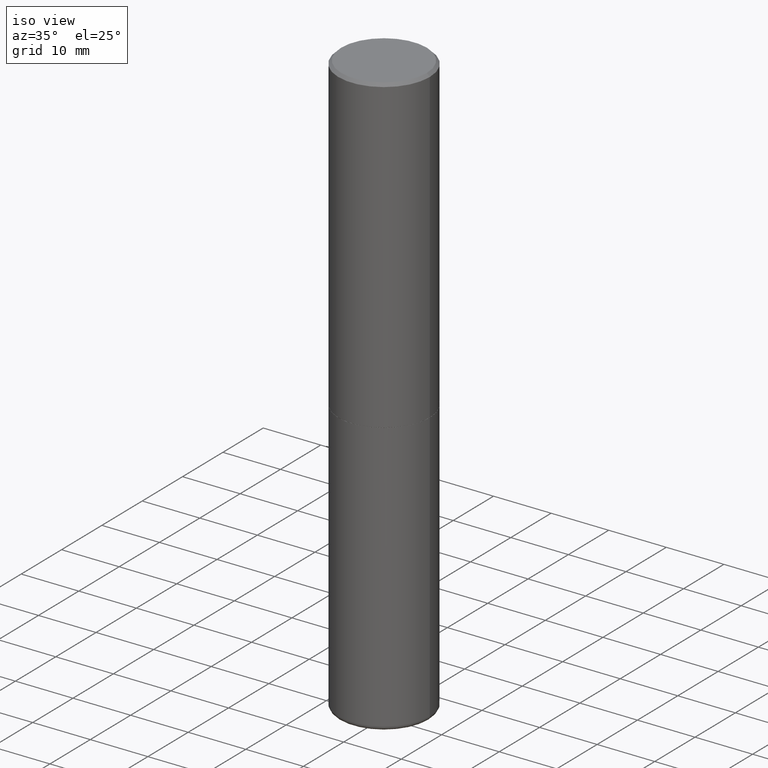
[diagram: clean part render]
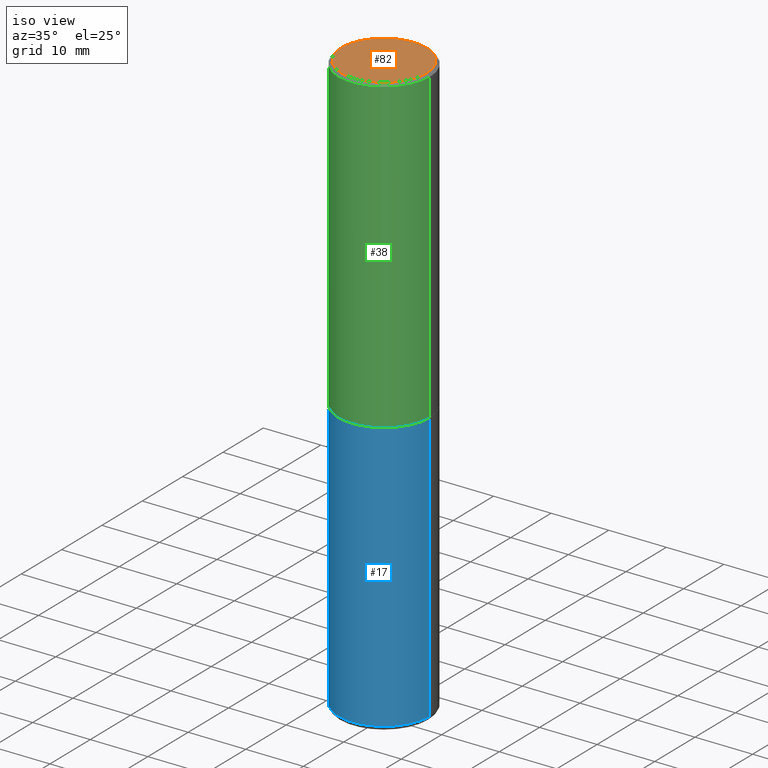
[diagram: same view with three faces highlighted in distinct colors, each labeled with its STEP entity id]
A machine part, iso view with three faces highlighted in distinct colors.
Their STEP definitions:

[orange] entity #82 — the highlighted planar face has unit normal (0, -0, -1).
#10 = EDGE_CURVE ( 'NONE', #112, #45, #99, .T. ) ;
#33 = CARTESIAN_POINT ( 'NONE',  ( 0.2925000000000002043, -2.110215457714321114E-15, -2.006200870347048687E-16 ) ) ;
#37 = FACE_OUTER_BOUND ( 'NONE', #92, .T. ) ;
#42 = CIRCLE ( 'NONE', #377, 0.2925000000000002043 ) ;
#45 = VERTEX_POINT ( 'NONE', #33 ) ;
#53 = DIRECTION ( 'NONE',  ( 1.000000000000000000, -6.982962677686266711E-15, 4.873475059489872853E-29 ) ) ;
#62 = PLANE ( 'NONE',  #162 ) ;
#82 = ADVANCED_FACE ( 'NONE', ( #37 ), #62, .F. ) ;
#92 = EDGE_LOOP ( 'NONE', ( #156, #292 ) ) ;
#99 = CIRCLE ( 'NONE', #283, 0.2925000000000002043 ) ;
#112 = VERTEX_POINT ( 'NONE', #232 ) ;
#133 = DIRECTION ( 'NONE',  ( -1.000000000000000000, 6.982962677686265922E-15, -4.876176775795935793E-29 ) ) ;
#141 = DIRECTION ( 'NONE',  ( -2.445468806185136597E-29, 3.491481338843145583E-15, 1.000000000000000000 ) ) ;
#156 = ORIENTED_EDGE ( 'NONE', *, *, #10, .T. ) ;
#162 = AXIS2_PLACEMENT_3D ( 'NONE', #334, #295, #133 ) ;
#204 = CARTESIAN_POINT ( 'NONE',  ( 4.906101647375534649E-45, -7.004612900788104277E-31, -2.006200870347193887E-16 ) ) ;
#232 = CARTESIAN_POINT ( 'NONE',  ( -0.2925000000000002043, 2.077431396611664583E-15, -2.006200870347337854E-16 ) ) ;
#250 = DIRECTION ( 'NONE',  ( -2.445468806185136597E-29, 3.491481338843145583E-15, 1.000000000000000000 ) ) ;
#273 = DIRECTION ( 'NONE',  ( 1.000000000000000000, -6.982962677686266711E-15, 4.873475059489872853E-29 ) ) ;
#283 = AXIS2_PLACEMENT_3D ( 'NONE', #384, #250, #53 ) ;
#292 = ORIENTED_EDGE ( 'NONE', *, *, #386, .T. ) ;
#295 = DIRECTION ( 'NONE',  ( 2.438088387897960049E-29, -3.491481338843145188E-15, -1.000000000000000000 ) ) ;
#334 = CARTESIAN_POINT ( 'NONE',  ( 2.042516583223234117E-15, 0.2925000000000002043, -1.121568335128980438E-15 ) ) ;
#377 = AXIS2_PLACEMENT_3D ( 'NONE', #204, #141, #273 ) ;
#384 = CARTESIAN_POINT ( 'NONE',  ( 4.906101647375534649E-45, -7.004612900788104277E-31, -2.006200870347193887E-16 ) ) ;
#386 = EDGE_CURVE ( 'NONE', #45, #112, #42, .T. ) ;

[blue] entity #17 — the highlighted cylindrical surface (partial cylindrical patch) has radius 7.9375 mm, axis along (-0, 0, 1).
#16 = CARTESIAN_POINT ( 'NONE',  ( 9.708511160554992872E-29, -1.386118091520728738E-14, -3.970000000000000195 ) ) ;
#17 = ADVANCED_FACE ( 'NONE', ( #221 ), #187, .T. ) ;
#25 = EDGE_CURVE ( 'NONE', #154, #322, #57, .T. ) ;
#28 = ORIENTED_EDGE ( 'NONE', *, *, #264, .F. ) ;
#40 = DIRECTION ( 'NONE',  ( -2.445468806185136597E-29, 3.491481338843145583E-15, 1.000000000000000000 ) ) ;
#57 = CIRCLE ( 'NONE', #269, 0.3125000000000000000 ) ;
#64 = VECTOR ( 'NONE', #198, 39.37007874015748143 ) ;
#68 = CARTESIAN_POINT ( 'NONE',  ( 0.000000000000000000, 0.000000000000000000, 0.000000000000000000 ) ) ;
#89 = VECTOR ( 'NONE', #262, 39.37007874015748143 ) ;
#93 = EDGE_CURVE ( 'NONE', #179, #322, #265, .T. ) ;
#98 = DIRECTION ( 'NONE',  ( 1.000000000000000000, -6.982962677686266711E-15, 4.876176775795936353E-29 ) ) ;
#104 = CARTESIAN_POINT ( 'NONE',  ( -0.3125000000000000000, -8.419843330874173211E-15, -2.125000000000000000 ) ) ;
#111 = CARTESIAN_POINT ( 'NONE',  ( -0.3124999999999999445, -1.164073486595697430E-14, -3.970000000000000195 ) ) ;
#120 = AXIS2_PLACEMENT_3D ( 'NONE', #16, #40, #147 ) ;
#127 = ORIENTED_EDGE ( 'NONE', *, *, #354, .T. ) ;
#147 = DIRECTION ( 'NONE',  ( 1.000000000000000000, -6.982962677686264344E-15, 0.000000000000000000 ) ) ;
#154 = VERTEX_POINT ( 'NONE', #104 ) ;
#159 = DIRECTION ( 'NONE',  ( -2.445468806185136597E-29, 3.491481338843145583E-15, 1.000000000000000000 ) ) ;
#166 = CARTESIAN_POINT ( 'NONE',  ( 0.3125000000000000000, -2.182175836776958347E-15, 1.523805242436230075E-29 ) ) ;
#179 = VERTEX_POINT ( 'NONE', #359 ) ;
#187 = CYLINDRICAL_SURFACE ( 'NONE', #291, 0.3125000000000000000 ) ;
#191 = DIRECTION ( 'NONE',  ( -2.445468806185136597E-29, 3.491481338843145583E-15, 1.000000000000000000 ) ) ;
#198 = DIRECTION ( 'NONE',  ( -2.445468806185136877E-29, 3.491481338843145188E-15, 1.000000000000000000 ) ) ;
#221 = FACE_OUTER_BOUND ( 'NONE', #347, .T. ) ;
#235 = CIRCLE ( 'NONE', #120, 0.3124999999999999445 ) ;
#237 = LINE ( 'NONE', #367, #64 ) ;
#260 = ORIENTED_EDGE ( 'NONE', *, *, #25, .F. ) ;
#262 = DIRECTION ( 'NONE',  ( -2.445468806185136877E-29, 3.491481338843145188E-15, 1.000000000000000000 ) ) ;
#264 = EDGE_CURVE ( 'NONE', #370, #154, #237, .T. ) ;
#265 = LINE ( 'NONE', #166, #89 ) ;
#269 = AXIS2_PLACEMENT_3D ( 'NONE', #330, #191, #302 ) ;
#291 = AXIS2_PLACEMENT_3D ( 'NONE', #68, #159, #98 ) ;
#302 = DIRECTION ( 'NONE',  ( 1.000000000000000000, -6.982962677686269077E-15, 0.000000000000000000 ) ) ;
#322 = VERTEX_POINT ( 'NONE', #335 ) ;
#330 = CARTESIAN_POINT ( 'NONE',  ( 5.196621213143415268E-29, -7.419397845041683624E-15, -2.125000000000000000 ) ) ;
#335 = CARTESIAN_POINT ( 'NONE',  ( 0.3125000000000000000, -9.601573681818641971E-15, -2.125000000000000000 ) ) ;
#347 = EDGE_LOOP ( 'NONE', ( #28, #127, #414, #260 ) ) ;
#354 = EDGE_CURVE ( 'NONE', #370, #179, #235, .T. ) ;
#359 = CARTESIAN_POINT ( 'NONE',  ( 0.3124999999999999445, -1.604335675198424415E-14, -3.970000000000000195 ) ) ;
#367 = CARTESIAN_POINT ( 'NONE',  ( -0.3125000000000000000, 2.220446049250313081E-15, -1.537167215704658232E-29 ) ) ;
#370 = VERTEX_POINT ( 'NONE', #111 ) ;
#414 = ORIENTED_EDGE ( 'NONE', *, *, #93, .T. ) ;

[green] entity #38 — the highlighted cylindrical surface (partial cylindrical patch) has radius 7.9375 mm, axis along (-0, 0, 1).
#8 = VERTEX_POINT ( 'NONE', #352 ) ;
#14 = EDGE_CURVE ( 'NONE', #8, #317, #253, .T. ) ;
#19 = ORIENTED_EDGE ( 'NONE', *, *, #405, .F. ) ;
#21 = ORIENTED_EDGE ( 'NONE', *, *, #244, .F. ) ;
#38 = ADVANCED_FACE ( 'NONE', ( #392 ), #268, .T. ) ;
#50 = LINE ( 'NONE', #413, #293 ) ;
#51 = VERTEX_POINT ( 'NONE', #261 ) ;
#66 = DIRECTION ( 'NONE',  ( -2.445468806185136597E-29, 3.491481338843145583E-15, 1.000000000000000000 ) ) ;
#91 = DIRECTION ( 'NONE',  ( -2.445468806185136877E-29, 3.491481338843145188E-15, 1.000000000000000000 ) ) ;
#103 = CARTESIAN_POINT ( 'NONE',  ( 5.194175744337229665E-29, -7.415906363702840616E-15, -2.123999999999999666 ) ) ;
#109 = DIRECTION ( 'NONE',  ( 1.000000000000000000, -6.982962677686266711E-15, 0.000000000000000000 ) ) ;
#128 = CIRCLE ( 'NONE', #371, 0.3125000000000000000 ) ;
#131 = EDGE_CURVE ( 'NONE', #51, #8, #194, .T. ) ;
#139 = DIRECTION ( 'NONE',  ( 1.000000000000000000, -6.982962677686266711E-15, 4.876176775795935232E-29 ) ) ;
#160 = DIRECTION ( 'NONE',  ( 1.000000000000000000, -6.982962677686269077E-15, 0.000000000000000000 ) ) ;
#192 = CARTESIAN_POINT ( 'NONE',  ( 0.000000000000000000, 0.000000000000000000, 0.000000000000000000 ) ) ;
#194 = CIRCLE ( 'NONE', #256, 0.3125000000000002776 ) ;
#199 = DIRECTION ( 'NONE',  ( -2.445468806185136597E-29, 3.491481338843145583E-15, 1.000000000000000000 ) ) ;
#202 = CARTESIAN_POINT ( 'NONE',  ( -0.3125000000000000000, 2.112346210000095443E-15, -0.02000000000000006981 ) ) ;
#206 = CARTESIAN_POINT ( 'NONE',  ( 0.3125000000000000000, -2.213735251080466911E-15, -0.02000000000000006981 ) ) ;
#214 = EDGE_LOOP ( 'NONE', ( #19, #216, #344, #21 ) ) ;
#216 = ORIENTED_EDGE ( 'NONE', *, *, #131, .T. ) ;
#218 = DIRECTION ( 'NONE',  ( -2.445468806185136877E-29, 3.491481338843145188E-15, 1.000000000000000000 ) ) ;
#241 = VECTOR ( 'NONE', #218, 39.37007874015748143 ) ;
#244 = EDGE_CURVE ( 'NONE', #380, #317, #128, .T. ) ;
#253 = LINE ( 'NONE', #255, #241 ) ;
#255 = CARTESIAN_POINT ( 'NONE',  ( 0.3125000000000001665, -2.182175836776959530E-15, 1.523805242436230636E-29 ) ) ;
#256 = AXIS2_PLACEMENT_3D ( 'NONE', #103, #388, #160 ) ;
#261 = CARTESIAN_POINT ( 'NONE',  ( -0.3125000000000002776, -1.522421945989534932E-15, -2.123999999999999666 ) ) ;
#268 = CYLINDRICAL_SURFACE ( 'NONE', #305, 0.3125000000000001665 ) ;
#293 = VECTOR ( 'NONE', #91, 39.37007874015748143 ) ;
#305 = AXIS2_PLACEMENT_3D ( 'NONE', #192, #66, #139 ) ;
#317 = VERTEX_POINT ( 'NONE', #206 ) ;
#336 = CARTESIAN_POINT ( 'NONE',  ( 4.890937612370289799E-31, -6.982962677686315028E-17, -0.02000000000000006981 ) ) ;
#344 = ORIENTED_EDGE ( 'NONE', *, *, #14, .T. ) ;
#352 = CARTESIAN_POINT ( 'NONE',  ( 0.3125000000000002776, -9.598082200479802119E-15, -2.123999999999999666 ) ) ;
#371 = AXIS2_PLACEMENT_3D ( 'NONE', #336, #199, #109 ) ;
#380 = VERTEX_POINT ( 'NONE', #202 ) ;
#388 = DIRECTION ( 'NONE',  ( -2.445468806185136597E-29, 3.491481338843145583E-15, 1.000000000000000000 ) ) ;
#392 = FACE_OUTER_BOUND ( 'NONE', #214, .T. ) ;
#405 = EDGE_CURVE ( 'NONE', #51, #380, #50, .T. ) ;
#413 = CARTESIAN_POINT ( 'NONE',  ( -0.3125000000000001665, 2.220446049250314264E-15, -1.537167215704658792E-29 ) ) ;